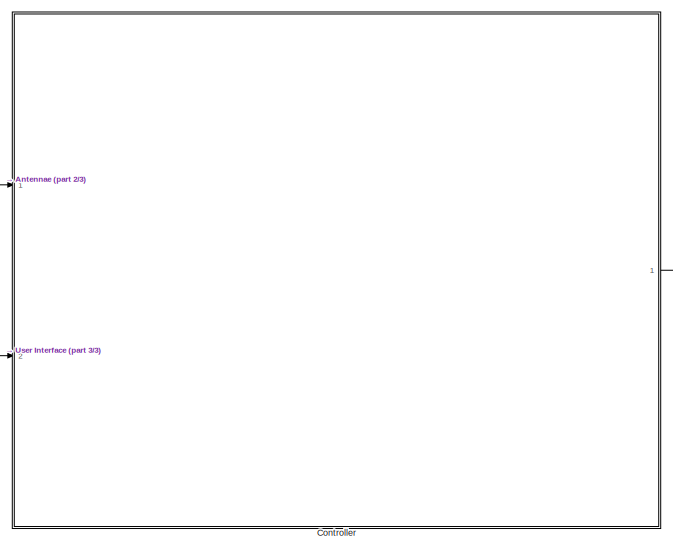
[diagram: root canvas - part 1/3, middle right region]
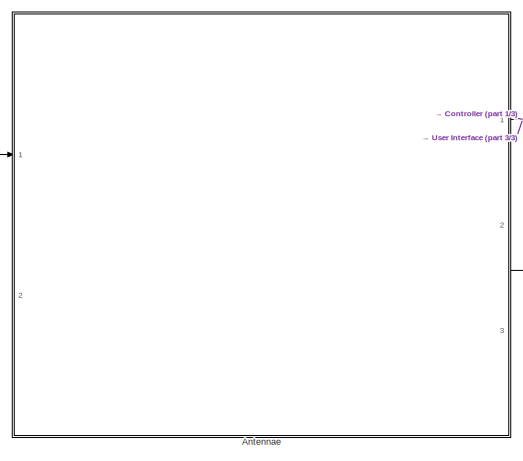
[diagram: root canvas - part 2/3, middle left region]
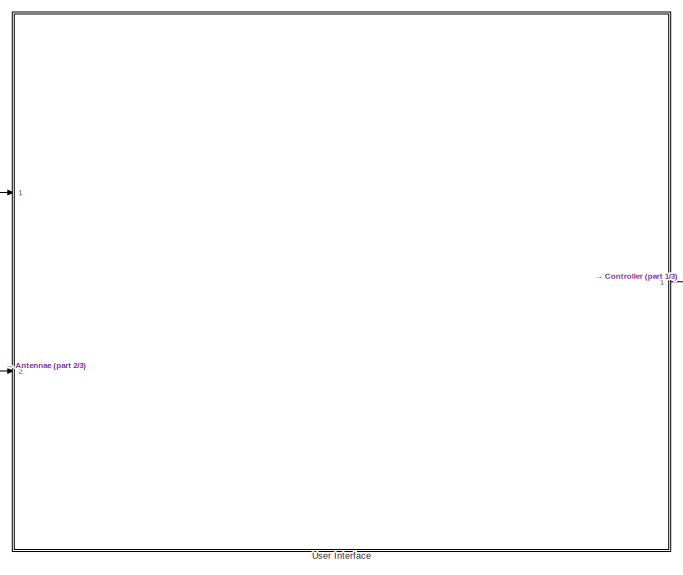
[diagram: root canvas - part 3/3, bottom center region]
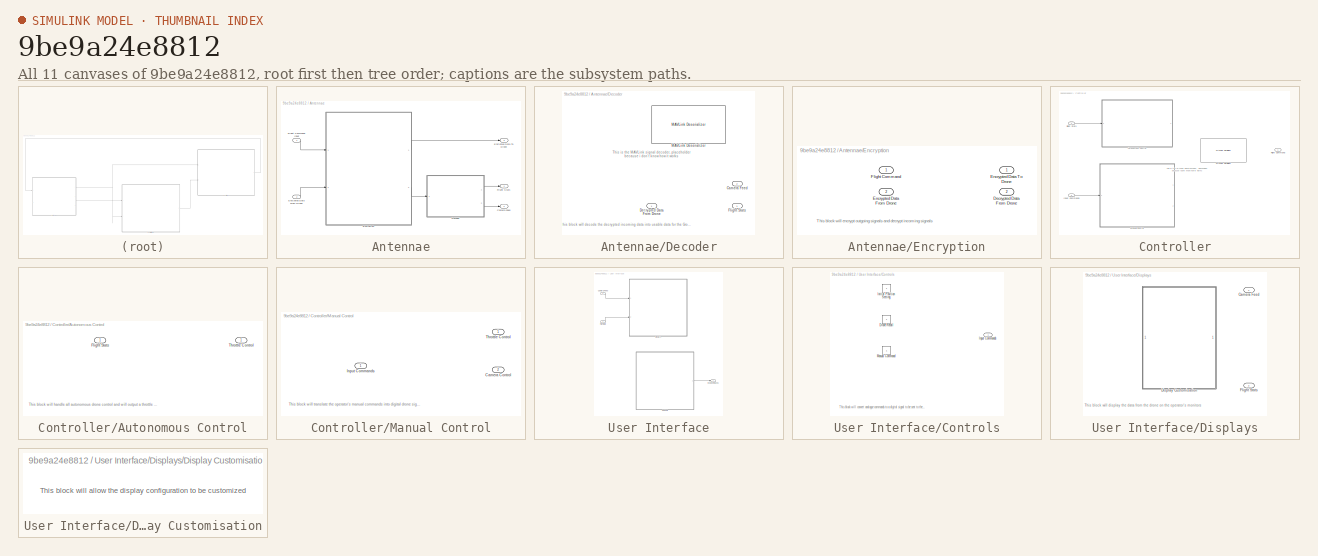
[diagram: thumbnail index - all 11 canvases of the model, root first then tree order]
MODEL slx_9be9a24e8812
KIND model
CONFIG AbsTol = auto
CONFIG EnableMultiTasking = off
CONFIG FixedStep = auto
CONFIG MaxStep = auto
CONFIG MinStep = auto
CONFIG RelTol = 1e-3
CONFIG SampleTimeConstraint = Unconstrained
CONFIG SolverName = VariableStepAuto
CONFIG StartTime = 0.0
CONFIG StopTime = 10.0
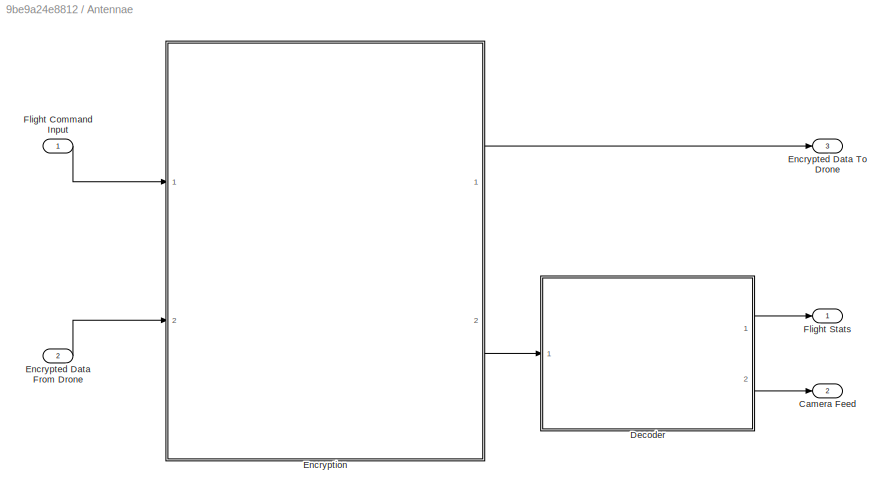
BLOCK [SubSystem] Antennae
  Ports = [2, 3]
  RequestExecContextInheritance = off
BLOCK [Outport] Antennae/Camera Feed
  Port = 2
BLOCK [SubSystem] Antennae/Decoder
  Ports = [1, 2]
  RequestExecContextInheritance = off
BLOCK [Outport] Antennae/Decoder/Camera Feed
  Port = 2
BLOCK [Inport] Antennae/Decoder/Decrypted Data From Drone
BLOCK [Outport] Antennae/Decoder/Flight Stats
BLOCK [Reference] Antennae/Decoder/MAVLink Deserializer  REF=uavmavlinklib/MAVLink Deserializer
  Ports = [1, 2]
  SourceBlock = uavmavlinklib/MAVLink Deserializer
  SourceProductBaseCode = UV
  SourceType = MAVLink Deserializer
BLOCK [Inport] Antennae/Encrypted Data From Drone
  Port = 2
BLOCK [Outport] Antennae/Encrypted Data To Drone 
  Port = 3
BLOCK [SubSystem] Antennae/Encryption
  Ports = [2, 2]
  RequestExecContextInheritance = off
BLOCK [Outport] Antennae/Encryption/Decrypted Data From Drone
  Port = 2
BLOCK [Inport] Antennae/Encryption/Encrypted Data From Drone
  Port = 2
BLOCK [Outport] Antennae/Encryption/Encrypted Data To Drone 
BLOCK [Inport] Antennae/Encryption/Flight Command
BLOCK [Inport] Antennae/Flight Command Input
BLOCK [Outport] Antennae/Flight Stats
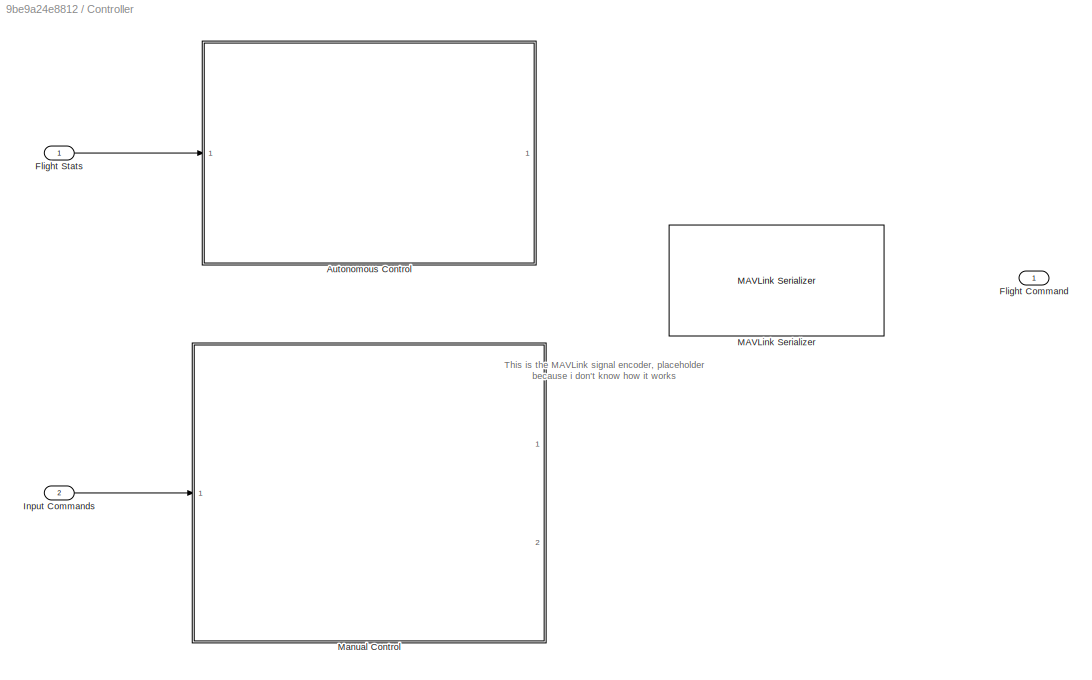
BLOCK [SubSystem] Controller
  Ports = [2, 1]
  RequestExecContextInheritance = off
BLOCK [SubSystem] Controller/Autonomous Control
  Ports = [1, 1]
  RequestExecContextInheritance = off
BLOCK [Inport] Controller/Autonomous Control/Flight Stats
BLOCK [Outport] Controller/Autonomous Control/Throttle Control
BLOCK [Outport] Controller/Flight Command
BLOCK [Inport] Controller/Flight Stats
BLOCK [Inport] Controller/Input Commands
  Port = 2
BLOCK [Reference] Controller/MAVLink Serializer  REF=uavmavlinklib/MAVLink Serializer
  Ports = [1, 2]
  SourceBlock = uavmavlinklib/MAVLink Serializer
  SourceProductBaseCode = UV
  SourceType = MAVLink Serializer
BLOCK [SubSystem] Controller/Manual Control
  Ports = [1, 2]
  RequestExecContextInheritance = off
BLOCK [Outport] Controller/Manual Control/Camera Control
  Port = 2
BLOCK [Inport] Controller/Manual Control/Input Commands
BLOCK [Outport] Controller/Manual Control/Throttle Control
BLOCK [SubSystem] User Interface
  Ports = [2, 1]
  RequestExecContextInheritance = off
BLOCK [Inport] User Interface/Camera Feed
BLOCK [SubSystem] User Interface/Controls
  Ports = [0, 1]
  RequestExecContextInheritance = off
BLOCK [Constant] User Interface/Controls/Drone Recall
BLOCK [Constant] User Interface/Controls/Initial Position Setting
BLOCK [Outport] User Interface/Controls/Input Commands
BLOCK [Constant] User Interface/Controls/Manual Command
BLOCK [SubSystem] User Interface/Displays
  Ports = [2]
  RequestExecContextInheritance = off
BLOCK [Inport] User Interface/Displays/Camera Feed
BLOCK [SubSystem] User Interface/Displays/Display Customisation
  Ports = []
  RequestExecContextInheritance = off
BLOCK [Inport] User Interface/Displays/Flight Stats
  Port = 2
BLOCK [Inport] User Interface/Flight Stats
  Port = 2
BLOCK [Outport] User Interface/Input Commands
ANNOTATION Antennae/Decoder: This block will decode the decrypted incoming data into usable data for the Ground Station
ANNOTATION Antennae/Decoder: This is the MAVLink signal decoder, placeholder because i don't know how it works
ANNOTATION Antennae/Encryption: This block will encrypt outgoing signals and decrypt incoming signals
ANNOTATION Controller: This is the MAVLink signal encoder, placeholder because i don't know how it works
ANNOTATION Controller/Autonomous Control: This block will handle all autonomous drone control and will output a throttle signal for the drone to execute
ANNOTATION Controller/Manual Control: This block will translate the operator's manual commands into digital drone signals
ANNOTATION User Interface/Controls: This block will convert analogue commands to a digital signal to be sent to the Controller
ANNOTATION User Interface/Displays: This block will display the data from the drone on the operator's monitors
ANNOTATION User Interface/Displays/Display Customisation: This block will allow the display configuration to be customized
LINE Antennae/Decoder:1 -> Antennae/Flight Stats:1
LINE Antennae/Decoder:2 -> Antennae/Camera Feed:1
LINE Antennae/Encrypted Data From Drone:1 -> Antennae/Encryption:2
LINE Antennae/Encryption:1 -> Antennae/Encrypted Data To Drone :1
LINE Antennae/Encryption:2 -> Antennae/Decoder:1
LINE Antennae/Flight Command Input:1 -> Antennae/Encryption:1
NET Antennae:1 -> Controller:1, User Interface:2
LINE Antennae:2 -> User Interface:1
LINE Controller/Flight Stats:1 -> Controller/Autonomous Control:1
LINE Controller/Input Commands:1 -> Controller/Manual Control:1
LINE Controller:1 -> Antennae:1
LINE User Interface/Camera Feed:1 -> User Interface/Displays:1
LINE User Interface/Controls:1 -> User Interface/Input Commands:1
LINE User Interface/Flight Stats:1 -> User Interface/Displays:2
LINE User Interface:1 -> Controller:2
note: NET lines group one-source signal fan-out (src -> all destinations, sorted); 1:1 wires keep LINE
